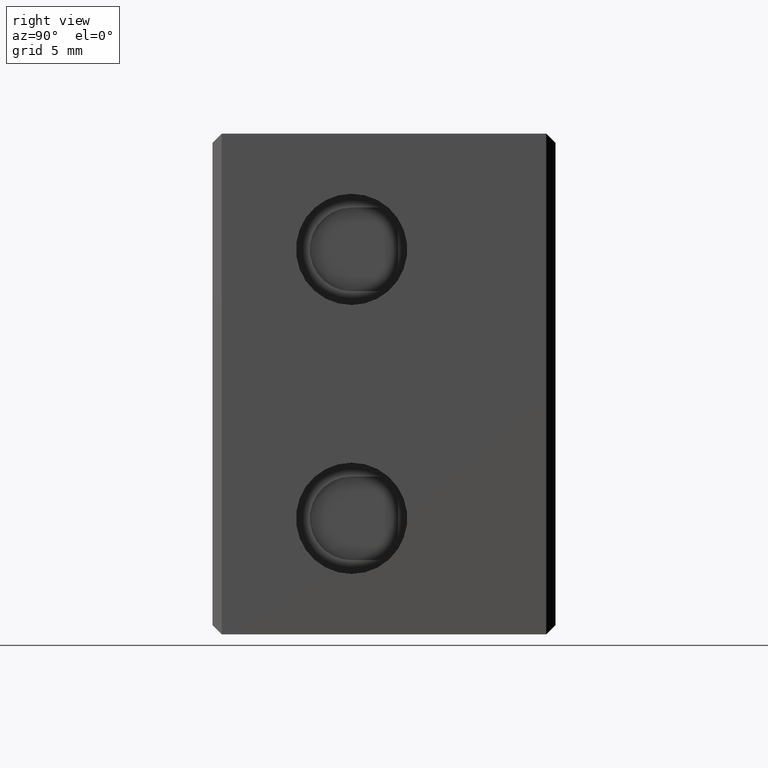
[diagram: clean part render]
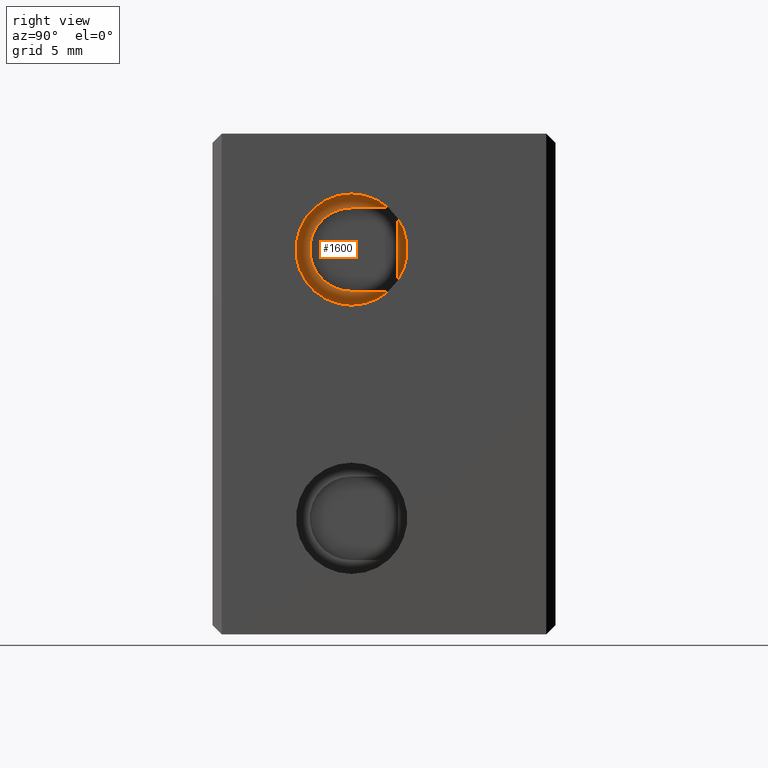
[diagram: same view with one face highlighted and labeled with its STEP entity id]
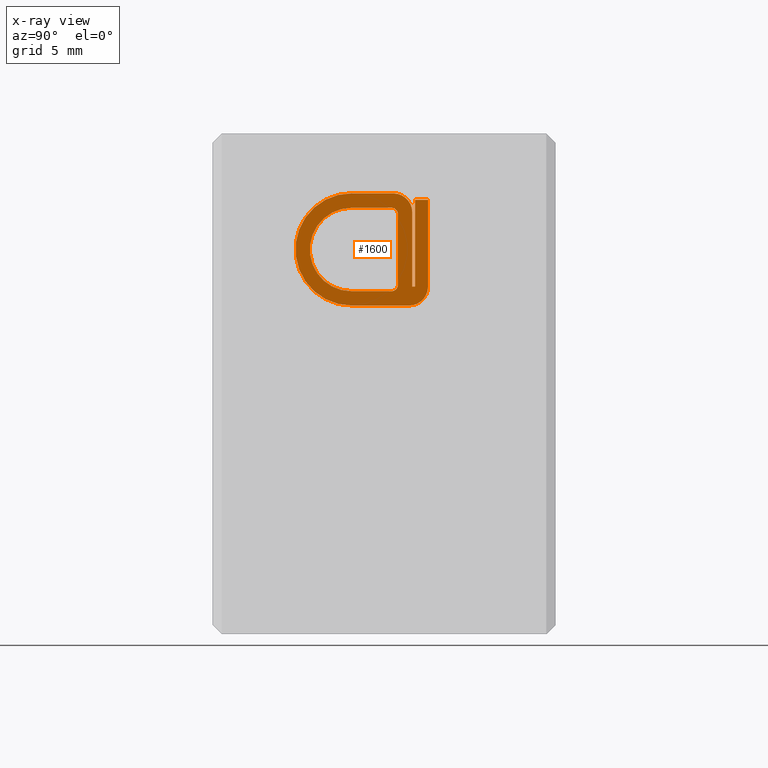
[diagram: x-ray of the same camera — body ghosted, the highlighted face saturated]
A machine part, right view. The second image highlights one B-rep face of the part: STEP entity #1600.
The next image is the same camera in x-ray: the body ghosted, the highlighted face saturated — about 0% of this face is hidden behind the body in this view.
In plain terms, the highlighted planar face has unit normal (-1, 0, 0).
Its self-contained STEP definition (entity closure, byte-faithful):
#325 = ORIENTED_EDGE ( 'NONE', *, *, #1425, .F. ) ;
#328 = ORIENTED_EDGE ( 'NONE', *, *, #1417, .F. ) ;
#330 = ORIENTED_EDGE ( 'NONE', *, *, #1397, .T. ) ;
#333 = ORIENTED_EDGE ( 'NONE', *, *, #1445, .F. ) ;
#335 = ORIENTED_EDGE ( 'NONE', *, *, #1447, .T. ) ;
#339 = ORIENTED_EDGE ( 'NONE', *, *, #1405, .T. ) ;
#343 = ORIENTED_EDGE ( 'NONE', *, *, #1444, .F. ) ;
#348 = ORIENTED_EDGE ( 'NONE', *, *, #1360, .F. ) ;
#350 = ORIENTED_EDGE ( 'NONE', *, *, #1366, .T. ) ;
#363 = ORIENTED_EDGE ( 'NONE', *, *, #1420, .F. ) ;
#365 = ORIENTED_EDGE ( 'NONE', *, *, #1386, .F. ) ;
#367 = ORIENTED_EDGE ( 'NONE', *, *, #1395, .T. ) ;
#374 = ORIENTED_EDGE ( 'NONE', *, *, #1394, .T. ) ;
#381 = ORIENTED_EDGE ( 'NONE', *, *, #1409, .F. ) ;
#394 = ORIENTED_EDGE ( 'NONE', *, *, #1399, .F. ) ;
#411 = ORIENTED_EDGE ( 'NONE', *, *, #1391, .F. ) ;
#1360 = EDGE_CURVE ( 'NONE', #3579, #3528, #5255, .T. ) ;
#1366 = EDGE_CURVE ( 'NONE', #3524, #3551, #4204, .T. ) ;
#1386 = EDGE_CURVE ( 'NONE', #3572, #3577, #4362, .T. ) ;
#1391 = EDGE_CURVE ( 'NONE', #3568, #3572, #4380, .T. ) ;
#1394 = EDGE_CURVE ( 'NONE', #3551, #3547, #4422, .T. ) ;
#1395 = EDGE_CURVE ( 'NONE', #3522, #3552, #4430, .T. ) ;
#1397 = EDGE_CURVE ( 'NONE', #3547, #3522, #4231, .T. ) ;
#1399 = EDGE_CURVE ( 'NONE', #3530, #3568, #4431, .T. ) ;
#1405 = EDGE_CURVE ( 'NONE', #3552, #3545, #4175, .T. ) ;
#1409 = EDGE_CURVE ( 'NONE', #3529, #3562, #4197, .T. ) ;
#1417 = EDGE_CURVE ( 'NONE', #3562, #3527, #4454, .T. ) ;
#1420 = EDGE_CURVE ( 'NONE', #3528, #3530, #4287, .T. ) ;
#1425 = EDGE_CURVE ( 'NONE', #3577, #3542, #4460, .T. ) ;
#1444 = EDGE_CURVE ( 'NONE', #3527, #3579, #4279, .T. ) ;
#1445 = EDGE_CURVE ( 'NONE', #3542, #3529, #4541, .T. ) ;
#1447 = EDGE_CURVE ( 'NONE', #3545, #3524, #4556, .T. ) ;
#1600 = ADVANCED_FACE ( 'NONE', ( #2115, #2120 ), #2089, .F. ) ;
#2089 = PLANE ( 'NONE',  #3811 ) ;
#2108 = DIRECTION ( 'NONE',  ( 0.0000000000000000000, 0.0000000000000000000, 1.000000000000000000 ) ) ;
#2113 = CARTESIAN_POINT ( 'NONE',  ( 18.24999999999999600, 9.750001176720021000, -4.250000000000796700 ) ) ;
#2115 = FACE_BOUND ( 'NONE', #3007, .T. ) ;
#2120 = FACE_OUTER_BOUND ( 'NONE', #2983, .T. ) ;
#2121 = DIRECTION ( 'NONE',  ( -1.000000000000000000, 0.0000000000000000000, 0.0000000000000000000 ) ) ;
#2427 = CARTESIAN_POINT ( 'NONE',  ( 18.24999999999999600, 10.77500117672065000, -4.250000000000796700 ) ) ;
#2454 = CARTESIAN_POINT ( 'NONE',  ( 18.24999999999999600, 9.750001176720021000, -3.224999999999997000 ) ) ;
#2455 = CARTESIAN_POINT ( 'NONE',  ( 18.24999999999999600, 11.62500117671971700, -8.250000000000994800 ) ) ;
#2458 = CARTESIAN_POINT ( 'NONE',  ( 18.24999999999999600, 7.500000613720024100, -9.275000000000881400 ) ) ;
#2482 = CARTESIAN_POINT ( 'NONE',  ( 18.24999999999999600, 7.500000000000004400, -4.000000000000147400 ) ) ;
#2484 = CARTESIAN_POINT ( 'NONE',  ( 18.24999999999999600, 10.00000117672001200, -8.150000000000595400 ) ) ;
#2494 = CARTESIAN_POINT ( 'NONE',  ( 18.24999999999999600, 10.77500117672059200, -8.250000000001250600 ) ) ;
#2499 = CARTESIAN_POINT ( 'NONE',  ( 18.24999999999999600, 9.650001176720012500, -8.500000000000595100 ) ) ;
#2501 = CARTESIAN_POINT ( 'NONE',  ( 18.24999999999999600, 11.62500117671982200, -3.574999999999500600 ) ) ;
#2506 = CARTESIAN_POINT ( 'NONE',  ( 18.24999999999999600, 7.500000000000004400, -3.224999999999773200 ) ) ;
#2516 = CARTESIAN_POINT ( 'NONE',  ( 18.24999999999999600, 10.60000117672015000, -9.275000000000789100 ) ) ;
#2519 = CARTESIAN_POINT ( 'NONE',  ( 18.24999999999999600, 7.500000630385509100, -8.500000000000644800 ) ) ;
#2521 = CARTESIAN_POINT ( 'NONE',  ( 18.24999999999999600, 10.92500117671982300, -8.250000000001250600 ) ) ;
#2525 = CARTESIAN_POINT ( 'NONE',  ( 18.24999999999999600, 10.92500117671982300, -3.574999999999500600 ) ) ;
#2530 = CARTESIAN_POINT ( 'NONE',  ( 18.24999999999999600, 9.650001176720032000, -4.000000000000314400 ) ) ;
#2531 = CARTESIAN_POINT ( 'NONE',  ( 18.24999999999999600, 10.00000117672001200, -4.349999999999797100 ) ) ;
#2983 = EDGE_LOOP ( 'NONE', ( #363, #348, #343, #328, #381, #333, #325, #365, #411, #394 ) ) ;
#3007 = EDGE_LOOP ( 'NONE', ( #335, #350, #374, #330, #367, #339 ) ) ;
#3522 = VERTEX_POINT ( 'NONE', #2482 ) ;
#3524 = VERTEX_POINT ( 'NONE', #2484 ) ;
#3527 = VERTEX_POINT ( 'NONE', #2458 ) ;
#3528 = VERTEX_POINT ( 'NONE', #2454 ) ;
#3529 = VERTEX_POINT ( 'NONE', #2455 ) ;
#3530 = VERTEX_POINT ( 'NONE', #2427 ) ;
#3542 = VERTEX_POINT ( 'NONE', #2501 ) ;
#3545 = VERTEX_POINT ( 'NONE', #2531 ) ;
#3547 = VERTEX_POINT ( 'NONE', #2519 ) ;
#3551 = VERTEX_POINT ( 'NONE', #2499 ) ;
#3552 = VERTEX_POINT ( 'NONE', #2530 ) ;
#3562 = VERTEX_POINT ( 'NONE', #2516 ) ;
#3568 = VERTEX_POINT ( 'NONE', #2494 ) ;
#3572 = VERTEX_POINT ( 'NONE', #2521 ) ;
#3577 = VERTEX_POINT ( 'NONE', #2525 ) ;
#3579 = VERTEX_POINT ( 'NONE', #2506 ) ;
#3811 = AXIS2_PLACEMENT_3D ( 'NONE', #2113, #2121, #2108 ) ;
#4139 = VECTOR ( 'NONE', #5270, 1000.000000000000000 ) ;
#4172 = VECTOR ( 'NONE', #4442, 1000.000000000000000 ) ;
#4173 = AXIS2_PLACEMENT_3D ( 'NONE', #4427, #4406, #4418 ) ;
#4175 = CIRCLE ( 'NONE', #4208, 0.3500000000000342800 ) ;
#4179 = AXIS2_PLACEMENT_3D ( 'NONE', #4461, #4473, #4444 ) ;
#4189 = VECTOR ( 'NONE', #4436, 1000.000000000000000 ) ;
#4197 = CIRCLE ( 'NONE', #4179, 1.024999999999538500 ) ;
#4204 = CIRCLE ( 'NONE', #4224, 0.3499999999999996400 ) ;
#4208 = AXIS2_PLACEMENT_3D ( 'NONE', #4404, #4440, #4441 ) ;
#4211 = VECTOR ( 'NONE', #4434, 1000.000000000000000 ) ;
#4224 = AXIS2_PLACEMENT_3D ( 'NONE', #4346, #4320, #4311 ) ;
#4227 = VECTOR ( 'NONE', #4365, 1000.000000000000000 ) ;
#4230 = VECTOR ( 'NONE', #4393, 1000.000000000000000 ) ;
#4231 = CIRCLE ( 'NONE', #4173, 2.250000000000292700 ) ;
#4242 = VECTOR ( 'NONE', #4574, 1000.000000000000000 ) ;
#4244 = VECTOR ( 'NONE', #4569, 1000.000000000000000 ) ;
#4261 = AXIS2_PLACEMENT_3D ( 'NONE', #4555, #4552, #4577 ) ;
#4272 = VECTOR ( 'NONE', #4443, 1000.000000000000000 ) ;
#4279 = CIRCLE ( 'NONE', #4261, 3.025000000000581200 ) ;
#4287 = CIRCLE ( 'NONE', #4298, 1.025000000000713800 ) ;
#4298 = AXIS2_PLACEMENT_3D ( 'NONE', #4471, #4450, #4463 ) ;
#4299 = VECTOR ( 'NONE', #4495, 1000.000000000000000 ) ;
#4311 = DIRECTION ( 'NONE',  ( 0.0000000000000000000, 0.0000000000000000000, 1.000000000000000000 ) ) ;
#4320 = DIRECTION ( 'NONE',  ( -1.000000000000000000, 0.0000000000000000000, 0.0000000000000000000 ) ) ;
#4346 = CARTESIAN_POINT ( 'NONE',  ( 18.24999999999999600, 9.650001176720012500, -8.150000000000595400 ) ) ;
#4362 = LINE ( 'NONE', #4363, #4230 ) ;
#4363 = CARTESIAN_POINT ( 'NONE',  ( 18.24999999999999600, 10.92500117671982300, -8.250000000001250600 ) ) ;
#4364 = CARTESIAN_POINT ( 'NONE',  ( 18.24999999999999600, 10.77500117672059200, -8.250000000001250600 ) ) ;
#4365 = DIRECTION ( 'NONE',  ( 0.0000000000000000000, 1.000000000000000000, 0.0000000000000000000 ) ) ;
#4380 = LINE ( 'NONE', #4364, #4227 ) ;
#4393 = DIRECTION ( 'NONE',  ( 0.0000000000000000000, 0.0000000000000000000, 1.000000000000000000 ) ) ;
#4401 = CARTESIAN_POINT ( 'NONE',  ( 18.24999999999999600, 7.500000630385508200, -8.500000000000644800 ) ) ;
#4404 = CARTESIAN_POINT ( 'NONE',  ( 18.24999999999999600, 9.650001176720032000, -4.350000000000348700 ) ) ;
#4406 = DIRECTION ( 'NONE',  ( -1.000000000000000000, 0.0000000000000000000, 0.0000000000000000000 ) ) ;
#4414 = CARTESIAN_POINT ( 'NONE',  ( 18.24999999999999600, 9.650001176720032000, -4.000000000000258500 ) ) ;
#4418 = DIRECTION ( 'NONE',  ( 0.0000000000000000000, 0.0000000000000000000, 1.000000000000000000 ) ) ;
#4422 = LINE ( 'NONE', #4401, #4172 ) ;
#4424 = CARTESIAN_POINT ( 'NONE',  ( 18.24999999999999600, 10.77500117672065000, -4.250000000000796700 ) ) ;
#4427 = CARTESIAN_POINT ( 'NONE',  ( 18.24999999999999600, 7.500000000000004400, -6.250000000000354400 ) ) ;
#4430 = LINE ( 'NONE', #4414, #4211 ) ;
#4431 = LINE ( 'NONE', #4424, #4189 ) ;
#4434 = DIRECTION ( 'NONE',  ( -0.0000000000000000000, 1.000000000000000000, -5.163825195290713100E-014 ) ) ;
#4436 = DIRECTION ( 'NONE',  ( 0.0000000000000000000, -1.431146867680703000E-014, -1.000000000000000000 ) ) ;
#4440 = DIRECTION ( 'NONE',  ( -1.000000000000000000, 0.0000000000000000000, 0.0000000000000000000 ) ) ;
#4441 = DIRECTION ( 'NONE',  ( 0.0000000000000000000, 0.0000000000000000000, 1.000000000000000000 ) ) ;
#4442 = DIRECTION ( 'NONE',  ( -0.0000000000000000000, -1.000000000000000000, -2.259174185335001000E-014 ) ) ;
#4443 = DIRECTION ( 'NONE',  ( 0.0000000000000000000, -1.000000000000000000, -3.917116815000125400E-014 ) ) ;
#4444 = DIRECTION ( 'NONE',  ( 0.0000000000000000000, 0.0000000000000000000, 1.000000000000000000 ) ) ;
#4447 = CARTESIAN_POINT ( 'NONE',  ( 18.24999999999999600, 10.92500117671982300, -3.574999999999500600 ) ) ;
#4450 = DIRECTION ( 'NONE',  ( -1.000000000000000000, 0.0000000000000000000, 0.0000000000000000000 ) ) ;
#4454 = LINE ( 'NONE', #4487, #4272 ) ;
#4460 = LINE ( 'NONE', #4447, #4299 ) ;
#4461 = CARTESIAN_POINT ( 'NONE',  ( 18.24999999999999600, 10.60000117672015000, -8.250000000001250600 ) ) ;
#4463 = DIRECTION ( 'NONE',  ( 0.0000000000000000000, 0.0000000000000000000, 1.000000000000000000 ) ) ;
#4471 = CARTESIAN_POINT ( 'NONE',  ( 18.24999999999999600, 9.750001176720021000, -4.250000000000796700 ) ) ;
#4473 = DIRECTION ( 'NONE',  ( -1.000000000000000000, 0.0000000000000000000, 0.0000000000000000000 ) ) ;
#4487 = CARTESIAN_POINT ( 'NONE',  ( 18.24999999999999600, 10.60000117672015000, -9.275000000000760600 ) ) ;
#4495 = DIRECTION ( 'NONE',  ( 0.0000000000000000000, 1.000000000000000000, 0.0000000000000000000 ) ) ;
#4541 = LINE ( 'NONE', #4551, #4242 ) ;
#4551 = CARTESIAN_POINT ( 'NONE',  ( 18.24999999999999600, 11.62500117671982200, -3.574999999999500600 ) ) ;
#4552 = DIRECTION ( 'NONE',  ( -1.000000000000000000, 0.0000000000000000000, 0.0000000000000000000 ) ) ;
#4555 = CARTESIAN_POINT ( 'NONE',  ( 18.24999999999999600, 7.500000000000004400, -6.250000000000354400 ) ) ;
#4556 = LINE ( 'NONE', #4575, #4244 ) ;
#4569 = DIRECTION ( 'NONE',  ( -0.0000000000000000000, -0.0000000000000000000, -1.000000000000000000 ) ) ;
#4574 = DIRECTION ( 'NONE',  ( 0.0000000000000000000, -2.226383070771661200E-014, -1.000000000000000000 ) ) ;
#4575 = CARTESIAN_POINT ( 'NONE',  ( 18.24999999999999600, 10.00000117672001200, -8.150000000000595400 ) ) ;
#4577 = DIRECTION ( 'NONE',  ( 0.0000000000000000000, 0.0000000000000000000, 1.000000000000000000 ) ) ;
#5220 = CARTESIAN_POINT ( 'NONE',  ( 18.24999999999999600, 7.500000000000004400, -3.224999999999782000 ) ) ;
#5255 = LINE ( 'NONE', #5220, #4139 ) ;
#5270 = DIRECTION ( 'NONE',  ( 0.0000000000000000000, 1.000000000000000000, -9.560248823278329600E-014 ) ) ;